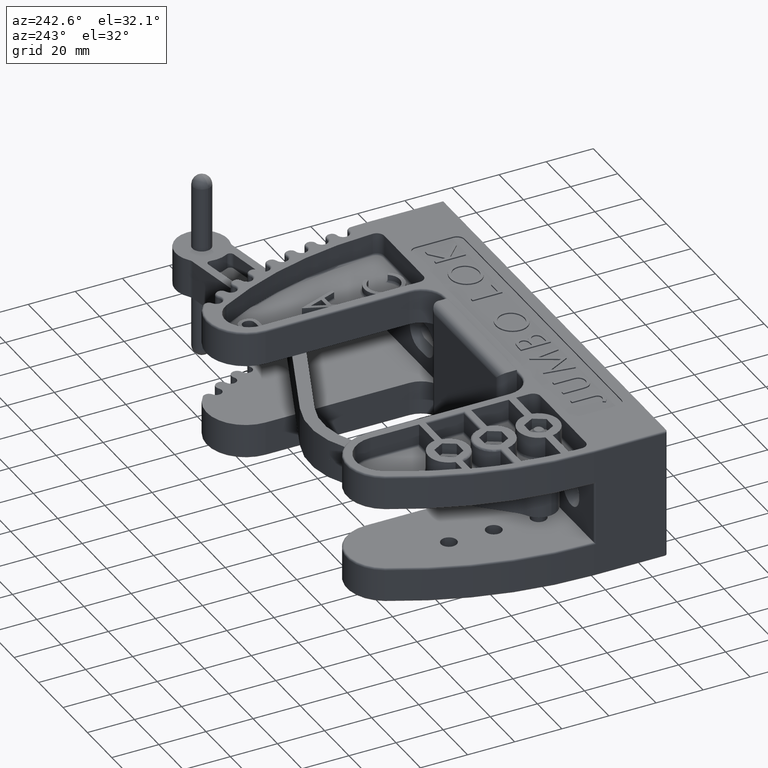
[diagram: clean part render]
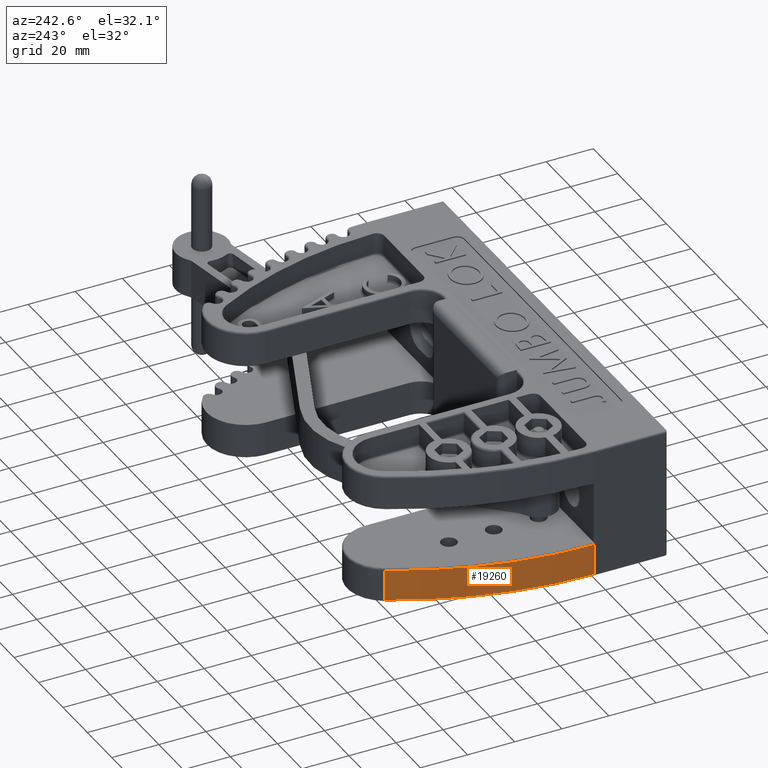
[diagram: same view with one face highlighted and labeled with its STEP entity id]
A machine part, auxiliary view. The second image highlights one B-rep face of the part: STEP entity #19260.
In plain terms, the highlighted cylindrical surface (partial cylindrical patch) has radius 163.512 mm, axis along (-0, -0, -1).
Its self-contained STEP definition (entity closure, byte-faithful):
#3414 = FACE_OUTER_BOUND ( 'NONE', #40519, .T. ) ;
#3431 = CYLINDRICAL_SURFACE ( 'NONE', #61299, 6.437500000000000000 ) ;
#19260 = ADVANCED_FACE ( 'NONE', ( #3414 ), #3431, .T. ) ;
#28314 = DIRECTION ( 'NONE',  ( -1.000000000000000000, 0.0000000000000000000, 0.0000000000000000000 ) ) ;
#28318 = DIRECTION ( 'NONE',  ( -0.0000000000000000000, -0.0000000000000000000, -1.000000000000000000 ) ) ;
#28319 = CARTESIAN_POINT ( 'NONE',  ( 2.812500000000000000, 1.218250000000000100, 1.093750000000000000 ) ) ;
#34595 = CARTESIAN_POINT ( 'NONE',  ( -2.832150477258460300, 4.313298826688496800, 1.093750000000000000 ) ) ;
#34596 = DIRECTION ( 'NONE',  ( -0.0000000000000000000, -0.0000000000000000000, -1.000000000000000000 ) ) ;
#34601 = CARTESIAN_POINT ( 'NONE',  ( 2.812500000000000000, 1.218250000000000100, -0.5456249999999994700 ) ) ;
#34606 = CARTESIAN_POINT ( 'NONE',  ( 2.812500000000000000, 1.218250000000000100, -1.063750000000000200 ) ) ;
#34610 = DIRECTION ( 'NONE',  ( 0.0000000000000000000, -0.0000000000000000000, -1.000000000000000000 ) ) ;
#34611 = DIRECTION ( 'NONE',  ( 1.000000000000000000, 0.0000000000000000000, 0.0000000000000000000 ) ) ;
#34612 = CARTESIAN_POINT ( 'NONE',  ( -3.625000000000000400, 1.218250000000000100, 1.093750000000000000 ) ) ;
#34613 = DIRECTION ( 'NONE',  ( -0.0000000000000000000, -0.0000000000000000000, -1.000000000000000000 ) ) ;
#34614 = DIRECTION ( 'NONE',  ( 0.0000000000000000000, 0.0000000000000000000, 1.000000000000000000 ) ) ;
#34615 = DIRECTION ( 'NONE',  ( -1.000000000000000000, -5.325777447842563200E-015, 0.0000000000000000000 ) ) ;
#35671 = LINE ( 'NONE', #34595, #35672 ) ;
#35672 = VECTOR ( 'NONE', #34596, 39.37007874015748100 ) ;
#35676 = LINE ( 'NONE', #34612, #35684 ) ;
#35684 = VECTOR ( 'NONE', #34613, 39.37007874015748100 ) ;
#35687 = CIRCLE ( 'NONE', #36645, 6.437500000000000000 ) ;
#35690 = CIRCLE ( 'NONE', #36648, 6.437500000000000000 ) ;
#36645 = AXIS2_PLACEMENT_3D ( 'NONE', #34601, #34610, #34611 ) ;
#36648 = AXIS2_PLACEMENT_3D ( 'NONE', #34606, #34614, #34615 ) ;
#37922 = CARTESIAN_POINT ( 'NONE',  ( -2.832150477258460300, 4.313298826688496800, -0.5456249999999994700 ) ) ;
#37923 = CARTESIAN_POINT ( 'NONE',  ( -2.832150477258460300, 4.313298826688496800, -1.063750000000000200 ) ) ;
#37926 = CARTESIAN_POINT ( 'NONE',  ( -3.625000000000000400, 1.218250000000000100, -0.5456249999999994700 ) ) ;
#37927 = CARTESIAN_POINT ( 'NONE',  ( -3.625000000000000400, 1.218250000000000100, -1.063750000000000200 ) ) ;
#40519 = EDGE_LOOP ( 'NONE', ( #40814, #40815, #40816, #40817 ) ) ;
#40814 = ORIENTED_EDGE ( 'NONE', *, *, #50797, .F. ) ;
#40815 = ORIENTED_EDGE ( 'NONE', *, *, #50794, .T. ) ;
#40816 = ORIENTED_EDGE ( 'NONE', *, *, #50784, .T. ) ;
#40817 = ORIENTED_EDGE ( 'NONE', *, *, #50798, .T. ) ;
#50784 = EDGE_CURVE ( 'NONE', #53830, #53831, #35671, .T. ) ;
#50794 = EDGE_CURVE ( 'NONE', #53834, #53830, #35687, .T. ) ;
#50797 = EDGE_CURVE ( 'NONE', #53834, #53835, #35676, .T. ) ;
#50798 = EDGE_CURVE ( 'NONE', #53831, #53835, #35690, .T. ) ;
#53830 = VERTEX_POINT ( 'NONE', #37922 ) ;
#53831 = VERTEX_POINT ( 'NONE', #37923 ) ;
#53834 = VERTEX_POINT ( 'NONE', #37926 ) ;
#53835 = VERTEX_POINT ( 'NONE', #37927 ) ;
#61299 = AXIS2_PLACEMENT_3D ( 'NONE', #28319, #28318, #28314 ) ;